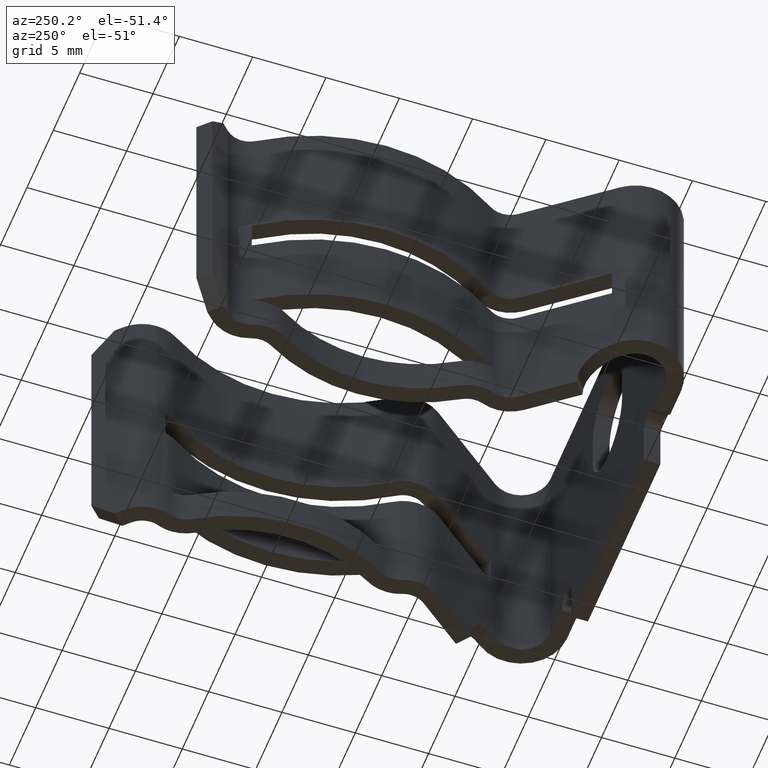
[diagram: clean part render]
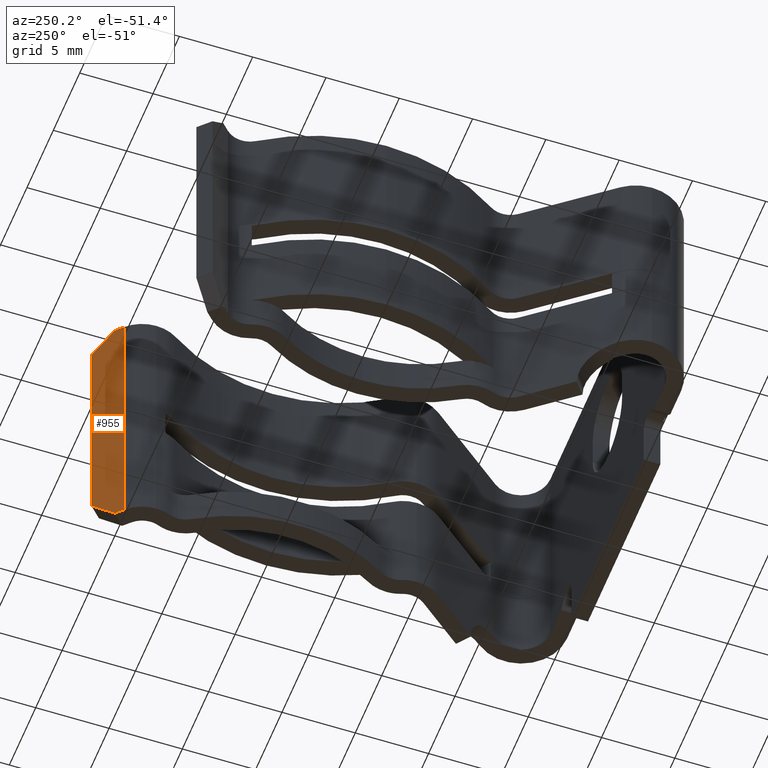
[diagram: same view with one face highlighted and labeled with its STEP entity id]
A machine part, auxiliary view. The second image highlights one B-rep face of the part: STEP entity #955.
In plain terms, the highlighted planar face has unit normal (-0.7071, 0.7071, 0).
Its self-contained STEP definition (entity closure, byte-faithful):
#366 = ORIENTED_EDGE ( 'NONE', *, *, #4286, .F. ) ;
#407 = DIRECTION ( 'NONE',  ( 0.7071067811865486800, 0.7071067811865464600, 0.0000000000000000000 ) ) ;
#586 = LINE ( 'NONE', #3472, #4274 ) ;
#863 = LINE ( 'NONE', #1157, #2675 ) ;
#955 = ADVANCED_FACE ( 'NONE', ( #3009 ), #2311, .T. ) ;
#985 = ORIENTED_EDGE ( 'NONE', *, *, #1964, .F. ) ;
#1157 = CARTESIAN_POINT ( 'NONE',  ( 0.3273395744130395100, 1.180660425586960600, 0.02000000000000000000 ) ) ;
#1222 = DIRECTION ( 'NONE',  ( 0.5000000000000014400, 0.4999999999999998300, -0.7071067811865464600 ) ) ;
#1287 = CARTESIAN_POINT ( 'NONE',  ( 0.3365283912309964800, 1.189849242404917600, 0.03299494936611678500 ) ) ;
#1498 = VECTOR ( 'NONE', #1946, 39.37007874015748100 ) ;
#1854 = EDGE_LOOP ( 'NONE', ( #3291, #2412, #4384, #3982, #985, #366 ) ) ;
#1946 = DIRECTION ( 'NONE',  ( -0.0000000000000000000, -0.0000000000000000000, -1.000000000000000000 ) ) ;
#1964 = EDGE_CURVE ( 'NONE', #3461, #3393, #4292, .T. ) ;
#2048 = VERTEX_POINT ( 'NONE', #3762 ) ;
#2099 = CARTESIAN_POINT ( 'NONE',  ( 0.3916791488260793500, 1.245000000000000300, 0.02000000000000000000 ) ) ;
#2197 = DIRECTION ( 'NONE',  ( -0.7071067811865486800, -0.7071067811865464600, 0.0000000000000000000 ) ) ;
#2203 = DIRECTION ( 'NONE',  ( -0.7071067811865464600, 0.7071067811865486800, 0.0000000000000000000 ) ) ;
#2311 = PLANE ( 'NONE',  #4390 ) ;
#2364 = VERTEX_POINT ( 'NONE', #3517 ) ;
#2373 = DIRECTION ( 'NONE',  ( -0.0000000000000000000, -0.0000000000000000000, -1.000000000000000000 ) ) ;
#2387 = CARTESIAN_POINT ( 'NONE',  ( 0.3273395744130395100, 1.180660425586960600, 0.02000000000000000000 ) ) ;
#2391 = CARTESIAN_POINT ( 'NONE',  ( 0.3273395744130395100, 1.180660425586960600, -0.7199999999999999700 ) ) ;
#2398 = CARTESIAN_POINT ( 'NONE',  ( 0.3273395744130395100, 1.180660425586960600, 0.02000000000000000000 ) ) ;
#2412 = ORIENTED_EDGE ( 'NONE', *, *, #3591, .T. ) ;
#2437 = VERTEX_POINT ( 'NONE', #2726 ) ;
#2457 = LINE ( 'NONE', #2099, #1498 ) ;
#2675 = VECTOR ( 'NONE', #407, 39.37007874015748100 ) ;
#2725 = VECTOR ( 'NONE', #2373, 39.37007874015748100 ) ;
#2726 = CARTESIAN_POINT ( 'NONE',  ( 0.3273395744130395100, 1.180660425586960600, 0.02000000000000000000 ) ) ;
#2755 = VERTEX_POINT ( 'NONE', #2799 ) ;
#2799 = CARTESIAN_POINT ( 'NONE',  ( 0.3916791488260794000, 1.245000000000000600, -0.6549999999999994700 ) ) ;
#2849 = CARTESIAN_POINT ( 'NONE',  ( 0.3457172080489535100, 1.199038059222874700, -0.7200000000000000800 ) ) ;
#3009 = FACE_OUTER_BOUND ( 'NONE', #1854, .T. ) ;
#3057 = VECTOR ( 'NONE', #1222, 39.37007874015748900 ) ;
#3291 = ORIENTED_EDGE ( 'NONE', *, *, #3869, .T. ) ;
#3307 = EDGE_CURVE ( 'NONE', #2755, #3393, #586, .T. ) ;
#3393 = VERTEX_POINT ( 'NONE', #2849 ) ;
#3461 = VERTEX_POINT ( 'NONE', #2391 ) ;
#3472 = CARTESIAN_POINT ( 'NONE',  ( 0.5981579002700195800, 1.451478751443940000, -0.3629949493661155900 ) ) ;
#3478 = EDGE_CURVE ( 'NONE', #2048, #2755, #2457, .T. ) ;
#3517 = CARTESIAN_POINT ( 'NONE',  ( 0.3457172080489535600, 1.199038059222874700, 0.01999999999999999000 ) ) ;
#3560 = DIRECTION ( 'NONE',  ( -0.4999999999999998900, -0.4999999999999983900, -0.7071067811865486800 ) ) ;
#3591 = EDGE_CURVE ( 'NONE', #2364, #2048, #4004, .T. ) ;
#3685 = LINE ( 'NONE', #2398, #2725 ) ;
#3762 = CARTESIAN_POINT ( 'NONE',  ( 0.3916791488260794000, 1.245000000000000300, -0.04500000000000003300 ) ) ;
#3869 = EDGE_CURVE ( 'NONE', #2437, #2364, #863, .T. ) ;
#3982 = ORIENTED_EDGE ( 'NONE', *, *, #3307, .T. ) ;
#4004 = LINE ( 'NONE', #1287, #3057 ) ;
#4274 = VECTOR ( 'NONE', #3560, 39.37007874015748900 ) ;
#4286 = EDGE_CURVE ( 'NONE', #2437, #3461, #3685, .T. ) ;
#4292 = LINE ( 'NONE', #4309, #4405 ) ;
#4301 = DIRECTION ( 'NONE',  ( 0.7071067811865486800, 0.7071067811865464600, 0.0000000000000000000 ) ) ;
#4309 = CARTESIAN_POINT ( 'NONE',  ( 0.3273395744130395100, 1.180660425586960600, -0.7199999999999999700 ) ) ;
#4384 = ORIENTED_EDGE ( 'NONE', *, *, #3478, .T. ) ;
#4390 = AXIS2_PLACEMENT_3D ( 'NONE', #2387, #2203, #2197 ) ;
#4405 = VECTOR ( 'NONE', #4301, 39.37007874015748100 ) ;